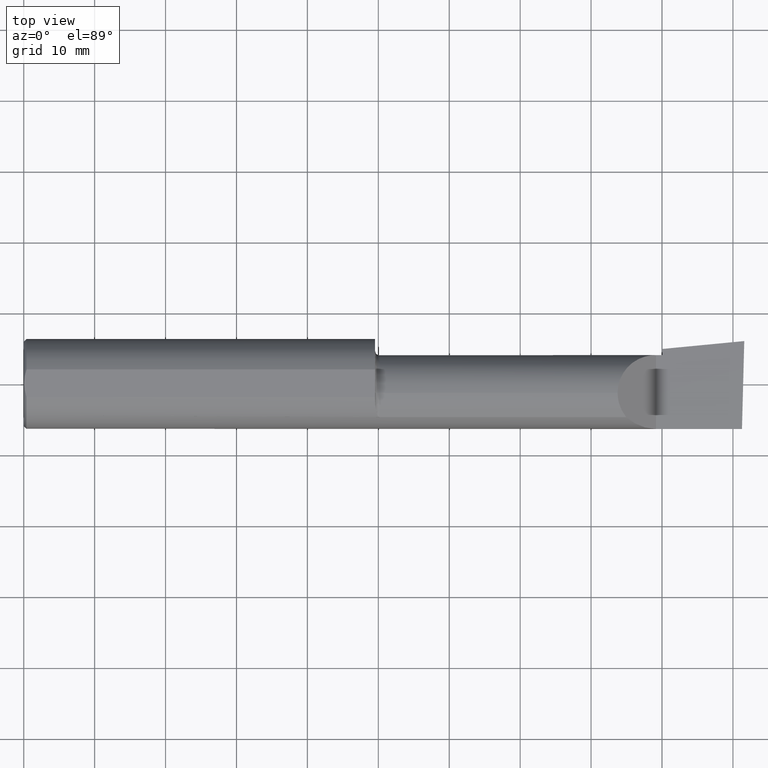
[diagram: clean part render]
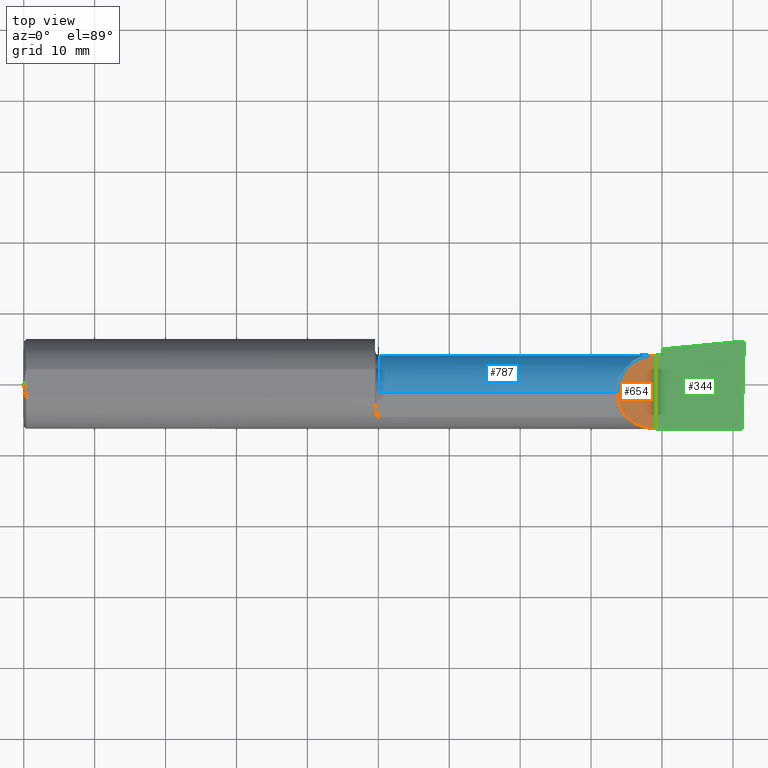
[diagram: same view with three faces highlighted in distinct colors, each labeled with its STEP entity id]
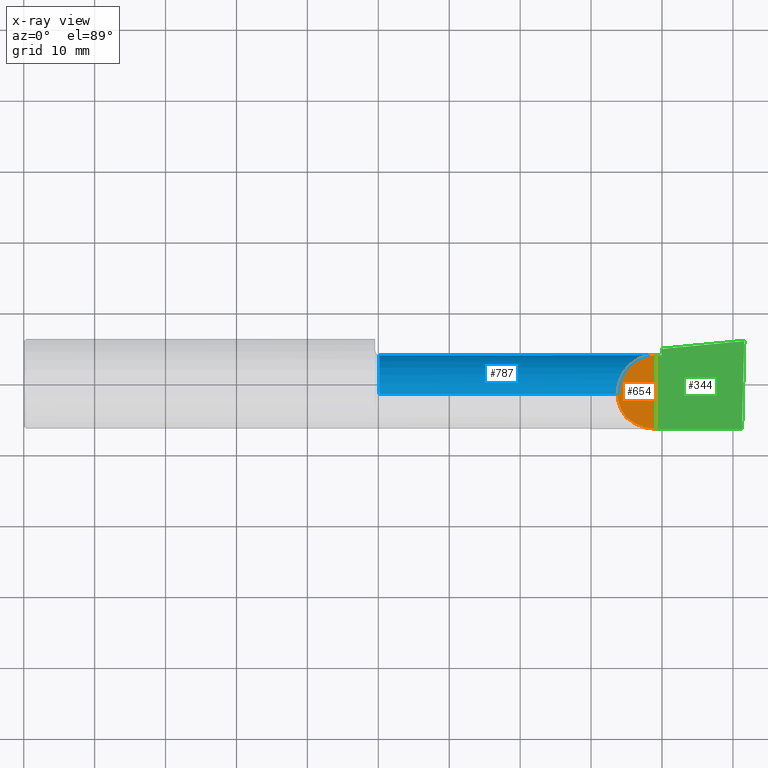
[diagram: x-ray of the same camera — body ghosted, the three highlighted faces saturated]
A machine part, top view with three faces highlighted in distinct colors.
The next image is the same camera in x-ray (body ghosted, the three faces saturated) — at least one of them is partly hidden behind the body in this view.
Their STEP definitions:

[orange] entity #654 — the highlighted planar face has unit normal (-0.7071, 0, -0.7071).
#11 = LINE ( 'NONE', #72, #398 ) ;
#42 = CARTESIAN_POINT ( 'NONE',  ( 3.296849999999997394, -0.05299999999999998462, 0.2131499999999999506 ) ) ;
#48 = CARTESIAN_POINT ( 'NONE',  ( 3.296849999999996061, -0.1021668565906576620, 0.2131499999999999229 ) ) ;
#72 = CARTESIAN_POINT ( 'NONE',  ( 3.509999999999999787, -0.2500000000000000555, -6.245698675651499853E-17 ) ) ;
#102 = CARTESIAN_POINT ( 'NONE',  ( 3.509999999999999787, -0.2500000000000000555, -6.245698675651499853E-17 ) ) ;
#107 = CARTESIAN_POINT ( 'NONE',  ( 3.344079160038590626, -0.1868028301886808795, 0.1659208399614073015 ) ) ;
#188 = CARTESIAN_POINT ( 'NONE',  ( 3.296849999999997394, -0.05299999999999998462, 0.2131499999999999506 ) ) ;
#214 = EDGE_CURVE ( 'NONE', #643, #660, #786, .T. ) ;
#215 = DIRECTION ( 'NONE',  ( -0.7071067811865439090, 0.000000000000000000, -0.7071067811865511255 ) ) ;
#217 = AXIS2_PLACEMENT_3D ( 'NONE', #102, #215, #593 ) ;
#238 =( BOUNDED_CURVE ( )  B_SPLINE_CURVE ( 3, ( #546, #360, #791, #240 ),
 .UNSPECIFIED., .F., .T. ) 
 B_SPLINE_CURVE_WITH_KNOTS ( ( 4, 4 ),
 ( 4.712388980384687898, 5.438654041019563401 ),
 .UNSPECIFIED. ) 
 CURVE ( )  GEOMETRIC_REPRESENTATION_ITEM ( )  RATIONAL_B_SPLINE_CURVE ( ( 1.000000000000000000, 0.9565258159411005323, 0.9565258159411005323, 1.000000000000000000 ) ) 
 REPRESENTATION_ITEM ( '' )  );
#240 = CARTESIAN_POINT ( 'NONE',  ( 3.344079160038590626, -0.1868028301886808795, 0.1659208399614073015 ) ) ;
#280 = CARTESIAN_POINT ( 'NONE',  ( 3.313215146136122335, -0.1485302233682071760, 0.1967848538638751477 ) ) ;
#291 = CARTESIAN_POINT ( 'NONE',  ( 3.344079160038590626, -0.1868028301886808795, 0.1659208399614073015 ) ) ;
#294 = PLANE ( 'NONE',  #217 ) ;
#311 = VERTEX_POINT ( 'NONE', #739 ) ;
#323 = DIRECTION ( 'NONE',  ( -0.000000000000000000, 1.000000000000000000, -0.000000000000000000 ) ) ;
#329 = VERTEX_POINT ( 'NONE', #605 ) ;
#333 = EDGE_CURVE ( 'NONE', #660, #311, #339, .T. ) ;
#339 =( BOUNDED_CURVE ( )  B_SPLINE_CURVE ( 3, ( #188, #679, #556, #421 ),
 .UNSPECIFIED., .F., .T. ) 
 B_SPLINE_CURVE_WITH_KNOTS ( ( 4, 4 ),
 ( 0.000000000000000000, 1.570796326794898112 ),
 .UNSPECIFIED. ) 
 CURVE ( )  GEOMETRIC_REPRESENTATION_ITEM ( )  RATIONAL_B_SPLINE_CURVE ( ( 1.000000000000000000, 0.8047378541243646044, 0.8047378541243646044, 1.000000000000000000 ) ) 
 REPRESENTATION_ITEM ( '' )  );
#360 = CARTESIAN_POINT ( 'NONE',  ( 3.448145753305724259, -0.2498500000000001275, 0.06185424669427388999 ) ) ;
#370 = ORIENTED_EDGE ( 'NONE', *, *, #214, .F. ) ;
#388 = EDGE_CURVE ( 'NONE', #329, #643, #238, .T. ) ;
#398 = VECTOR ( 'NONE', #323, 39.37007874015748143 ) ;
#421 = CARTESIAN_POINT ( 'NONE',  ( 3.509999999999999787, 0.1601499999999999035, -6.245698675651499853E-17 ) ) ;
#455 = EDGE_LOOP ( 'NONE', ( #370, #649, #698, #531 ) ) ;
#518 = FACE_OUTER_BOUND ( 'NONE', #455, .T. ) ;
#531 = ORIENTED_EDGE ( 'NONE', *, *, #333, .F. ) ;
#546 = CARTESIAN_POINT ( 'NONE',  ( 3.509999999999999787, -0.2498499999999999610, -6.245698675651499853E-17 ) ) ;
#551 = EDGE_CURVE ( 'NONE', #329, #311, #11, .T. ) ;
#556 = CARTESIAN_POINT ( 'NONE',  ( 3.385139620819825446, 0.1601500000000001811, 0.1248603791801746327 ) ) ;
#593 = DIRECTION ( 'NONE',  ( -0.7071067811865511255, 0.000000000000000000, 0.7071067811865439090 ) ) ;
#594 = CARTESIAN_POINT ( 'NONE',  ( 3.296849999999997394, -0.05299999999999998462, 0.2131499999999999506 ) ) ;
#605 = CARTESIAN_POINT ( 'NONE',  ( 3.509999999999999787, -0.2498499999999999610, -6.245698675651499853E-17 ) ) ;
#643 = VERTEX_POINT ( 'NONE', #107 ) ;
#649 = ORIENTED_EDGE ( 'NONE', *, *, #388, .F. ) ;
#654 = ADVANCED_FACE ( 'NONE', ( #518 ), #294, .F. ) ;
#660 = VERTEX_POINT ( 'NONE', #42 ) ;
#679 = CARTESIAN_POINT ( 'NONE',  ( 3.296849999999997394, 0.07186037918017494641, 0.2131499999999999229 ) ) ;
#698 = ORIENTED_EDGE ( 'NONE', *, *, #551, .T. ) ;
#739 = CARTESIAN_POINT ( 'NONE',  ( 3.509999999999999787, 0.1601499999999999035, -6.245698675651499853E-17 ) ) ;
#786 =( BOUNDED_CURVE ( )  B_SPLINE_CURVE ( 3, ( #291, #280, #48, #594 ),
 .UNSPECIFIED., .F., .T. ) 
 B_SPLINE_CURVE_WITH_KNOTS ( ( 4, 4 ),
 ( 5.604538515477337945, 6.283185307179586232 ),
 .UNSPECIFIED. ) 
 CURVE ( )  GEOMETRIC_REPRESENTATION_ITEM ( )  RATIONAL_B_SPLINE_CURVE ( ( 1.000000000000000000, 0.9619867256453012994, 0.9619867256453012994, 1.000000000000000000 ) ) 
 REPRESENTATION_ITEM ( '' )  );
#791 = CARTESIAN_POINT ( 'NONE',  ( 3.390325100969866945, -0.2278791102234780930, 0.1196748990301311488 ) ) ;

[blue] entity #787 — the highlighted cylindrical surface (partial cylindrical patch) has radius 5.414 mm, axis along (-1, -0, -0).
#14 = EDGE_CURVE ( 'NONE', #660, #137, #491, .T. ) ;
#18 = CARTESIAN_POINT ( 'NONE',  ( 1.975000000000000089, -0.05299999999999998462, 0.2131499999999997563 ) ) ;
#19 = CIRCLE ( 'NONE', #483, 0.2131500000000001172 ) ;
#38 = CARTESIAN_POINT ( 'NONE',  ( 3.541916792879877374, 0.05627666367902749156, -0.1830073912696826288 ) ) ;
#42 = CARTESIAN_POINT ( 'NONE',  ( 3.296849999999997394, -0.05299999999999998462, 0.2131499999999999506 ) ) ;
#47 = CARTESIAN_POINT ( 'NONE',  ( 3.534569588231495807, 0.1159501401920713659, -0.1355866241796521987 ) ) ;
#50 = DIRECTION ( 'NONE',  ( 0.000000000000000000, 0.000000000000000000, 1.000000000000000000 ) ) ;
#60 = LINE ( 'NONE', #733, #561 ) ;
#63 = DIRECTION ( 'NONE',  ( -1.000000000000000000, -0.000000000000000000, -0.000000000000000000 ) ) ;
#85 = DIRECTION ( 'NONE',  ( 0.000000000000000000, 0.000000000000000000, 1.000000000000000000 ) ) ;
#93 = FACE_OUTER_BOUND ( 'NONE', #547, .T. ) ;
#100 = ORIENTED_EDGE ( 'NONE', *, *, #380, .T. ) ;
#112 = CIRCLE ( 'NONE', #136, 0.2131499999999997563 ) ;
#113 = CARTESIAN_POINT ( 'NONE',  ( 3.544999999999999929, 0.1601500000000001256, 4.685946446163640633E-16 ) ) ;
#126 =( BOUNDED_CURVE ( )  B_SPLINE_CURVE ( 3, ( #647, #47, #338, #152 ),
 .UNSPECIFIED., .F., .F. ) 
 B_SPLINE_CURVE_WITH_KNOTS ( ( 4, 4 ),
 ( 0.4968328636548078880, 1.034445644973930545 ),
 .UNSPECIFIED. ) 
 CURVE ( )  GEOMETRIC_REPRESENTATION_ITEM ( )  RATIONAL_B_SPLINE_CURVE ( ( 1.000000000000000000, 0.9760590552538844777, 0.9760590552538844777, 1.000000000000000000 ) ) 
 REPRESENTATION_ITEM ( '' )  );
#136 = AXIS2_PLACEMENT_3D ( 'NONE', #363, #63, #553 ) ;
#137 = VERTEX_POINT ( 'NONE', #18 ) ;
#143 = CARTESIAN_POINT ( 'NONE',  ( 1.975000000000000089, -0.05299999999999996381, -0.2131499999999997563 ) ) ;
#146 = ORIENTED_EDGE ( 'NONE', *, *, #446, .T. ) ;
#149 = VECTOR ( 'NONE', #430, 39.37007874015748143 ) ;
#152 = CARTESIAN_POINT ( 'NONE',  ( 3.540349815208490458, 0.05592018782259767368, -0.1832193089843152378 ) ) ;
#182 = CARTESIAN_POINT ( 'NONE',  ( 0.000000000000000000, -0.05299999999999996381, -0.2131499999999999506 ) ) ;
#183 = ORIENTED_EDGE ( 'NONE', *, *, #350, .F. ) ;
#188 = CARTESIAN_POINT ( 'NONE',  ( 3.296849999999997394, -0.05299999999999998462, 0.2131499999999999506 ) ) ;
#209 = VERTEX_POINT ( 'NONE', #585 ) ;
#210 = CARTESIAN_POINT ( 'NONE',  ( 3.543466858877805326, 0.05663251955088012546, -0.1827944341085905589 ) ) ;
#233 = CARTESIAN_POINT ( 'NONE',  ( 0.000000000000000000, -0.05299999999999998462, 0.000000000000000000 ) ) ;
#284 = CARTESIAN_POINT ( 'NONE',  ( 3.540349815208490458, 0.05592018782259767368, -0.1832193089843152378 ) ) ;
#287 = CYLINDRICAL_SURFACE ( 'NONE', #488, 0.2131499999999999506 ) ;
#296 = ORIENTED_EDGE ( 'NONE', *, *, #750, .T. ) ;
#298 = CARTESIAN_POINT ( 'NONE',  ( 3.544999999999999929, -0.05299999999999998462, -0.2131499999999999229 ) ) ;
#302 = ORIENTED_EDGE ( 'NONE', *, *, #611, .F. ) ;
#307 = DIRECTION ( 'NONE',  ( 1.000000000000000000, 0.000000000000000000, 0.000000000000000000 ) ) ;
#309 = EDGE_CURVE ( 'NONE', #734, #526, #426, .T. ) ;
#311 = VERTEX_POINT ( 'NONE', #739 ) ;
#325 = VERTEX_POINT ( 'NONE', #619 ) ;
#327 = CARTESIAN_POINT ( 'NONE',  ( 3.532795049205045501, 0.1343794326159074848, -0.1015966078791037813 ) ) ;
#333 = EDGE_CURVE ( 'NONE', #660, #311, #339, .T. ) ;
#338 = CARTESIAN_POINT ( 'NONE',  ( 3.537149611766881030, 0.08915557130098386573, -0.1634615431086031134 ) ) ;
#339 =( BOUNDED_CURVE ( )  B_SPLINE_CURVE ( 3, ( #188, #679, #556, #421 ),
 .UNSPECIFIED., .F., .T. ) 
 B_SPLINE_CURVE_WITH_KNOTS ( ( 4, 4 ),
 ( 0.000000000000000000, 1.570796326794898112 ),
 .UNSPECIFIED. ) 
 CURVE ( )  GEOMETRIC_REPRESENTATION_ITEM ( )  RATIONAL_B_SPLINE_CURVE ( ( 1.000000000000000000, 0.8047378541243646044, 0.8047378541243646044, 1.000000000000000000 ) ) 
 REPRESENTATION_ITEM ( '' )  );
#345 = CARTESIAN_POINT ( 'NONE',  ( 3.544999999999999929, 0.05698775240724691937, -0.1825804393148461047 ) ) ;
#350 = EDGE_CURVE ( 'NONE', #137, #526, #112, .T. ) ;
#363 = CARTESIAN_POINT ( 'NONE',  ( 1.975000000000000089, -0.05299999999999998462, 0.000000000000000000 ) ) ;
#376 = CARTESIAN_POINT ( 'NONE',  ( 3.544999999999999929, 0.1328281892403431197, -0.1044069278527782751 ) ) ;
#380 = EDGE_CURVE ( 'NONE', #311, #760, #60, .T. ) ;
#386 = CARTESIAN_POINT ( 'NONE',  ( 0.000000000000000000, -0.05299999999999998462, 0.2131499999999999506 ) ) ;
#399 = CARTESIAN_POINT ( 'NONE',  ( 3.544999999999999929, 0.05698775240724691937, -0.1825804393148461047 ) ) ;
#412 = ORIENTED_EDGE ( 'NONE', *, *, #333, .T. ) ;
#415 = CARTESIAN_POINT ( 'NONE',  ( 3.544999999999999929, -0.05299999999999998462, 0.000000000000000000 ) ) ;
#419 = AXIS2_PLACEMENT_3D ( 'NONE', #506, #754, #85 ) ;
#421 = CARTESIAN_POINT ( 'NONE',  ( 3.509999999999999787, 0.1601499999999999035, -6.245698675651499853E-17 ) ) ;
#426 = LINE ( 'NONE', #182, #149 ) ;
#430 = DIRECTION ( 'NONE',  ( -1.000000000000000000, -0.000000000000000000, -0.000000000000000000 ) ) ;
#446 = EDGE_CURVE ( 'NONE', #760, #535, #765, .T. ) ;
#483 = AXIS2_PLACEMENT_3D ( 'NONE', #415, #608, #50 ) ;
#484 = ORIENTED_EDGE ( 'NONE', *, *, #14, .F. ) ;
#488 = AXIS2_PLACEMENT_3D ( 'NONE', #233, #587, #788 ) ;
#491 = LINE ( 'NONE', #386, #789 ) ;
#506 = CARTESIAN_POINT ( 'NONE',  ( 3.544999999999999929, -0.05299999999999998462, 0.000000000000000000 ) ) ;
#526 = VERTEX_POINT ( 'NONE', #143 ) ;
#535 = VERTEX_POINT ( 'NONE', #376 ) ;
#547 = EDGE_LOOP ( 'NONE', ( #296, #575, #183, #484, #412, #100, #146, #768, #779, #302 ) ) ;
#553 = DIRECTION ( 'NONE',  ( 0.000000000000000000, 0.000000000000000000, 1.000000000000000000 ) ) ;
#556 = CARTESIAN_POINT ( 'NONE',  ( 3.385139620819825446, 0.1601500000000001811, 0.1248603791801746327 ) ) ;
#558 = EDGE_CURVE ( 'NONE', #325, #535, #670, .T. ) ;
#561 = VECTOR ( 'NONE', #307, 39.37007874015748143 ) ;
#575 = ORIENTED_EDGE ( 'NONE', *, *, #309, .T. ) ;
#585 = CARTESIAN_POINT ( 'NONE',  ( 3.540349815208490458, 0.05592018782259767368, -0.1832193089843152378 ) ) ;
#587 = DIRECTION ( 'NONE',  ( -1.000000000000000000, -0.000000000000000000, -0.000000000000000000 ) ) ;
#588 = CARTESIAN_POINT ( 'NONE',  ( 3.541044210672212866, 0.1333523194825137759, -0.1034740570574031182 ) ) ;
#608 = DIRECTION ( 'NONE',  ( -1.000000000000000000, -0.000000000000000000, -0.000000000000000000 ) ) ;
#611 = EDGE_CURVE ( 'NONE', #627, #209, #749, .T. ) ;
#619 = CARTESIAN_POINT ( 'NONE',  ( 3.532795049205045501, 0.1343794326159074848, -0.1015966078791037813 ) ) ;
#627 = VERTEX_POINT ( 'NONE', #399 ) ;
#633 = DIRECTION ( 'NONE',  ( -1.000000000000000000, -0.000000000000000000, -0.000000000000000000 ) ) ;
#640 = EDGE_CURVE ( 'NONE', #325, #209, #126, .T. ) ;
#647 = CARTESIAN_POINT ( 'NONE',  ( 3.532795049205045501, 0.1343794326159074848, -0.1015966078791037813 ) ) ;
#660 = VERTEX_POINT ( 'NONE', #42 ) ;
#670 =( BOUNDED_CURVE ( )  B_SPLINE_CURVE ( 3, ( #327, #717, #588, #708 ),
 .UNSPECIFIED., .F., .T. ) 
 B_SPLINE_CURVE_WITH_KNOTS ( ( 4, 4 ),
 ( 2.868174658477173455, 2.883234730632700415 ),
 .UNSPECIFIED. ) 
 CURVE ( )  GEOMETRIC_REPRESENTATION_ITEM ( )  RATIONAL_B_SPLINE_CURVE ( ( 1.000000000000000000, 0.9999810996081960335, 0.9999810996081960335, 1.000000000000000000 ) ) 
 REPRESENTATION_ITEM ( '' )  );
#679 = CARTESIAN_POINT ( 'NONE',  ( 3.296849999999997394, 0.07186037918017494641, 0.2131499999999999229 ) ) ;
#708 = CARTESIAN_POINT ( 'NONE',  ( 3.544999999999999929, 0.1328281892403431197, -0.1044069278527782751 ) ) ;
#717 = CARTESIAN_POINT ( 'NONE',  ( 3.536975816846326559, 0.1338694103809226765, -0.1025372660271275105 ) ) ;
#733 = CARTESIAN_POINT ( 'NONE',  ( 7.089685198749692867E-32, 0.1601499999999999313, 4.685946446163635703E-16 ) ) ;
#734 = VERTEX_POINT ( 'NONE', #298 ) ;
#739 = CARTESIAN_POINT ( 'NONE',  ( 3.509999999999999787, 0.1601499999999999035, -6.245698675651499853E-17 ) ) ;
#749 =( BOUNDED_CURVE ( )  B_SPLINE_CURVE ( 3, ( #345, #210, #38, #284 ),
 .UNSPECIFIED., .F., .F. ) 
 B_SPLINE_CURVE_WITH_KNOTS ( ( 4, 4 ),
 ( 3.399950576546887593, 3.405787439796295057 ),
 .UNSPECIFIED. ) 
 CURVE ( )  GEOMETRIC_REPRESENTATION_ITEM ( )  RATIONAL_B_SPLINE_CURVE ( ( 1.000000000000000000, 0.9999971609209656886, 0.9999971609209656886, 1.000000000000000000 ) ) 
 REPRESENTATION_ITEM ( '' )  );
#750 = EDGE_CURVE ( 'NONE', #627, #734, #19, .T. ) ;
#754 = DIRECTION ( 'NONE',  ( -1.000000000000000000, -0.000000000000000000, -0.000000000000000000 ) ) ;
#760 = VERTEX_POINT ( 'NONE', #113 ) ;
#765 = CIRCLE ( 'NONE', #419, 0.2131500000000001172 ) ;
#768 = ORIENTED_EDGE ( 'NONE', *, *, #558, .F. ) ;
#779 = ORIENTED_EDGE ( 'NONE', *, *, #640, .T. ) ;
#787 = ADVANCED_FACE ( 'NONE', ( #93 ), #287, .T. ) ;
#788 = DIRECTION ( 'NONE',  ( 0.000000000000000000, 0.000000000000000000, 1.000000000000000000 ) ) ;
#789 = VECTOR ( 'NONE', #633, 39.37007874015748143 ) ;

[green] entity #344 — the highlighted planar face has unit normal (-0, 0, -1).
#4 = DIRECTION ( 'NONE',  ( -1.000000000000000000, 0.000000000000000000, 1.512967610748942321E-16 ) ) ;
#11 = LINE ( 'NONE', #72, #398 ) ;
#60 = LINE ( 'NONE', #733, #561 ) ;
#66 = DIRECTION ( 'NONE',  ( -1.512967610748942321E-16, 0.000000000000000000, -1.000000000000000000 ) ) ;
#72 = CARTESIAN_POINT ( 'NONE',  ( 3.509999999999999787, -0.2500000000000000555, -6.245698675651499853E-17 ) ) ;
#80 = CARTESIAN_POINT ( 'NONE',  ( 3.987226101480002782, -0.2496655036952227513, -1.346597502108382365E-16 ) ) ;
#113 = CARTESIAN_POINT ( 'NONE',  ( 3.544999999999999929, 0.1601500000000001256, 4.685946446163640633E-16 ) ) ;
#124 = DIRECTION ( 'NONE',  ( 0.9953961983671787417, 0.09584575252022452252, -1.506002207992170530E-16 ) ) ;
#129 = ORIENTED_EDGE ( 'NONE', *, *, #205, .F. ) ;
#166 = CARTESIAN_POINT ( 'NONE',  ( 3.544999999999999929, -0.2500000000000000555, -6.775237339413629936E-17 ) ) ;
#184 = VECTOR ( 'NONE', #655, 39.37007874015748143 ) ;
#205 = EDGE_CURVE ( 'NONE', #552, #329, #767, .T. ) ;
#216 = CARTESIAN_POINT ( 'NONE',  ( 7.089685198749692867E-32, -0.2498499999999999610, 4.685946446163635703E-16 ) ) ;
#218 = ORIENTED_EDGE ( 'NONE', *, *, #631, .F. ) ;
#225 = LINE ( 'NONE', #166, #184 ) ;
#261 = CARTESIAN_POINT ( 'NONE',  ( 3.987221270274236229, -0.2498499999999999888, -1.346590301211604859E-16 ) ) ;
#307 = DIRECTION ( 'NONE',  ( 1.000000000000000000, 0.000000000000000000, 0.000000000000000000 ) ) ;
#311 = VERTEX_POINT ( 'NONE', #739 ) ;
#323 = DIRECTION ( 'NONE',  ( -0.000000000000000000, 1.000000000000000000, -0.000000000000000000 ) ) ;
#326 = EDGE_CURVE ( 'NONE', #775, #694, #373, .T. ) ;
#329 = VERTEX_POINT ( 'NONE', #605 ) ;
#344 = ADVANCED_FACE ( 'NONE', ( #369 ), #423, .F. ) ;
#369 = FACE_OUTER_BOUND ( 'NONE', #728, .T. ) ;
#373 = LINE ( 'NONE', #489, #701 ) ;
#378 = LINE ( 'NONE', #80, #607 ) ;
#380 = EDGE_CURVE ( 'NONE', #311, #760, #60, .T. ) ;
#398 = VECTOR ( 'NONE', #323, 39.37007874015748143 ) ;
#423 = PLANE ( 'NONE',  #452 ) ;
#452 = AXIS2_PLACEMENT_3D ( 'NONE', #614, #66, #4 ) ;
#465 = ORIENTED_EDGE ( 'NONE', *, *, #326, .F. ) ;
#485 = EDGE_CURVE ( 'NONE', #552, #694, #378, .T. ) ;
#489 = CARTESIAN_POINT ( 'NONE',  ( 0.9762916401177922365, -0.05299999999999998462, 3.208848816020454083E-16 ) ) ;
#496 = ORIENTED_EDGE ( 'NONE', *, *, #380, .F. ) ;
#537 = CARTESIAN_POINT ( 'NONE',  ( 4.000000000000011546, 0.2381500000000409123, 1.295322800245870883E-13 ) ) ;
#544 = CARTESIAN_POINT ( 'NONE',  ( 3.544999999999999929, 0.1943384830701263555, 4.685947727122480717E-16 ) ) ;
#551 = EDGE_CURVE ( 'NONE', #329, #311, #11, .T. ) ;
#552 = VERTEX_POINT ( 'NONE', #261 ) ;
#559 = VECTOR ( 'NONE', #774, 39.37007874015748143 ) ;
#561 = VECTOR ( 'NONE', #307, 39.37007874015748143 ) ;
#565 = DIRECTION ( 'NONE',  ( 0.02617694830786353177, 0.9996573249755575929, -3.901665791506465006E-18 ) ) ;
#568 = ORIENTED_EDGE ( 'NONE', *, *, #485, .T. ) ;
#605 = CARTESIAN_POINT ( 'NONE',  ( 3.509999999999999787, -0.2498499999999999610, -6.245698675651499853E-17 ) ) ;
#607 = VECTOR ( 'NONE', #565, 39.37007874015748143 ) ;
#614 = CARTESIAN_POINT ( 'NONE',  ( 4.000000000000000000, -0.2500000000000000555, -1.365923996832131609E-16 ) ) ;
#631 = EDGE_CURVE ( 'NONE', #760, #775, #225, .T. ) ;
#655 = DIRECTION ( 'NONE',  ( 0.000000000000000000, 1.000000000000000000, 0.000000000000000000 ) ) ;
#694 = VERTEX_POINT ( 'NONE', #537 ) ;
#701 = VECTOR ( 'NONE', #124, 39.37007874015748143 ) ;
#728 = EDGE_LOOP ( 'NONE', ( #129, #568, #465, #218, #496, #764 ) ) ;
#733 = CARTESIAN_POINT ( 'NONE',  ( 7.089685198749692867E-32, 0.1601499999999999313, 4.685946446163635703E-16 ) ) ;
#739 = CARTESIAN_POINT ( 'NONE',  ( 3.509999999999999787, 0.1601499999999999035, -6.245698675651499853E-17 ) ) ;
#760 = VERTEX_POINT ( 'NONE', #113 ) ;
#764 = ORIENTED_EDGE ( 'NONE', *, *, #551, .F. ) ;
#767 = LINE ( 'NONE', #216, #559 ) ;
#774 = DIRECTION ( 'NONE',  ( -1.000000000000000000, -0.000000000000000000, -0.000000000000000000 ) ) ;
#775 = VERTEX_POINT ( 'NONE', #544 ) ;